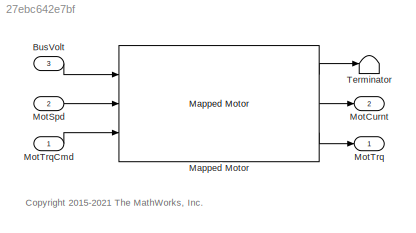
MODEL slx_27ebc642e7bf
KIND model
CONFIG AbsTol = auto
CONFIG EnableMultiTasking = on
CONFIG MaxStep = auto
CONFIG MinStep = auto
CONFIG RelTol = 1e-3
CONFIG SampleTimeConstraint = Unconstrained
CONFIG SolverName = VariableStepAuto
CONFIG StartTime = 0.0
CONFIG StopTime = inf
WORKSPACE source: mxarray member
WORKSPACE EV_current: Simulink.Parameter (value not decoded)
WORKSPACE EV_motion: Simulink.Parameter (value not decoded)
WORKSPACE EV_sf: Simulink.Parameter (value not decoded)
WORKSPACE Fs: Simulink.Parameter (value not decoded)
WORKSPACE Fv: Simulink.Parameter (value not decoded)
WORKSPACE Jcomp: Simulink.Parameter (value not decoded)
WORKSPACE Ki: Simulink.Parameter (value not decoded)
WORKSPACE Kisa: Simulink.Parameter (value not decoded)
WORKSPACE Kp_d: Simulink.Parameter (value not decoded)
WORKSPACE Kp_q: Simulink.Parameter (value not decoded)
WORKSPACE Ksa: Simulink.Parameter (value not decoded)
WORKSPACE Ksf: Simulink.Parameter (value not decoded)
WORKSPACE Ld: Simulink.Parameter (value not decoded)
WORKSPACE Ldq: Simulink.Parameter (value not decoded)
WORKSPACE Lq: Simulink.Parameter (value not decoded)
WORKSPACE Mechanical: Simulink.Parameter (value not decoded)
WORKSPACE P: Simulink.Parameter (value not decoded)
WORKSPACE PolePairs: Simulink.Parameter (value not decoded)
WORKSPACE Rs: Simulink.Parameter (value not decoded)
WORKSPACE T_eff_bp: Simulink.Parameter (value not decoded)
WORKSPACE T_max: Simulink.Parameter (value not decoded)
WORKSPACE T_mtpa: Simulink.Parameter (value not decoded)
WORKSPACE Tc: Simulink.Parameter (value not decoded)
WORKSPACE Temp_eff_bp: Simulink.Parameter (value not decoded)
WORKSPACE ba: Simulink.Parameter (value not decoded)
WORKSPACE efficiency_table: Simulink.Parameter (value not decoded)
WORKSPACE efficiency_table_3d: Simulink.Parameter (value not decoded)
WORKSPACE id_mtpa: Simulink.Parameter (value not decoded)
WORKSPACE idq0: Simulink.Parameter (value not decoded)
WORKSPACE idq_limits: Simulink.Parameter (value not decoded)
WORKSPACE iq_mtpa: Simulink.Parameter (value not decoded)
WORKSPACE lambda_pm: Simulink.Parameter (value not decoded)
WORKSPACE losses_table: Simulink.Parameter (value not decoded)
WORKSPACE losses_table_3d: Simulink.Parameter (value not decoded)
WORKSPACE mechanical: Simulink.Parameter (value not decoded)
WORKSPACE omega_init: Simulink.Parameter (value not decoded)
WORKSPACE power_max: Simulink.Parameter (value not decoded)
WORKSPACE theta_init: Simulink.Parameter (value not decoded)
WORKSPACE torque_max: Simulink.Parameter (value not decoded)
WORKSPACE w_eff_bp: Simulink.Parameter (value not decoded)
BLOCK [Inport] BusVolt
  Port = 3
BLOCK [Reference] Mapped Motor  REF=autolibmappedmotor/Mapped Motor
  Ports = [3, 3]
  SourceBlock = autolibmappedmotor/Mapped Motor
  SourceProductBaseCode = PW,DR,MT,VE
  SourceType = MappedMotor
BLOCK [Outport] MotCurnt
  Port = 2
  VectorParamsAs1DForOutWhenUnconnected = off
BLOCK [Inport] MotSpd
  Port = 2
BLOCK [Outport] MotTrq
  VectorParamsAs1DForOutWhenUnconnected = off
BLOCK [Inport] MotTrqCmd
BLOCK [Terminator] Terminator
ANNOTATION (root): <copyright redacted>
LINE BusVolt:1 -> Mapped Motor:1
LINE Mapped Motor:1 -> Terminator:1
LINE Mapped Motor:2 -> MotCurnt:1
LINE Mapped Motor:3 -> MotTrq:1
LINE MotSpd:1 -> Mapped Motor:2
LINE MotTrqCmd:1 -> Mapped Motor:3
